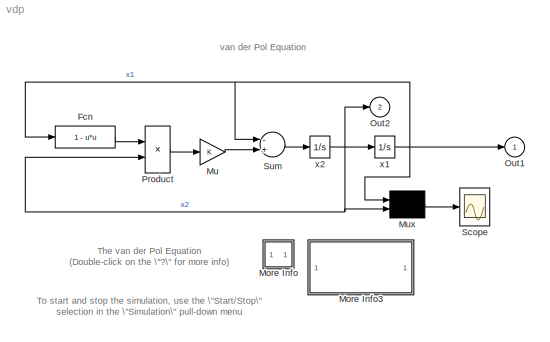
MODEL vdp
KIND model
BLOCK [Fcn] Fcn
  Expr = 1 - u*u
BLOCK [SubSystem] More Info
  MaskDisplay = disp('?')
  MaskIconFrame = on
  MaskIconOpaque = on
  MaskIconRotate = none
  MaskIconUnits = autoscale
  MinAlgLoopOccurrences = off
  Ports = []
  PropExecContextAcrossSSBoundary = on
  RTWSystemCode = Auto
  TreatAsAtomicUnit = off
BLOCK [SubSystem] More Info3
  MaskDisplay = disp('Double-click\\nhere for\\nSimulink Help')
  MaskIconFrame = on
  MaskIconOpaque = on
  MaskIconRotate = none
  MaskIconUnits = autoscale
  MinAlgLoopOccurrences = off
  OpenFcn = simcad(bdroot);
  Ports = []
  PropExecContextAcrossSSBoundary = on
  RTWSystemCode = Auto
  TreatAsAtomicUnit = off
BLOCK [Gain] Mu
BLOCK [Mux] Mux
  Inputs = 2
  Ports = [2, 1]
BLOCK [Outport] Out1
  IconDisplay = Port number
  InitialOutput = 0
BLOCK [Outport] Out2
  IconDisplay = Port number
  InitialOutput = 0
  Port = 2
BLOCK [Product] Product
  Ports = [2, 1]
BLOCK [Scope] Scope
  DataFormat = Array
  NumInputPorts = 1
  Ports = [1]
  TickLabels = on
  TimeRange = 20
  YMax = 3
  YMin = -3
BLOCK [Sum] Sum
  Inputs = -+
  Ports = [2, 1]
BLOCK [Integrator] x1
  InitialCondition = 2
  Ports = [1, 1]
BLOCK [Integrator] x2
  Ports = [1, 1]
ANNOTATION (root): The van der Pol Equation\n(Double-click on the \"?\" for more info)
ANNOTATION (root): To start and stop the simulation, use the \"Start/Stop\"\nselection in the \"Simulation\" pull-down menu
ANNOTATION (root): van der Pol Equation
ANNOTATION More Info: This demonstration models a second order nonlinear\nsystem.
ANNOTATION More Info: To see a demo of this, just type \"vdpdemo\" at the\ncommand line when the \"vdp\" window is open.\n
LINE Fcn:1 -> Product:1
LINE Mu:1 -> Sum:2
LINE Mux:1 -> Scope:1
LINE Product:1 -> Mu:1
LINE Sum:1 -> x2:1
NET x1:1 -> Fcn:1, Mux:1, Out1:1, Sum:1
NET x2:1 -> Mux:2, Out2:1, Product:2, x1:1
note: NET lines group one-source signal fan-out (src -> all destinations, sorted); 1:1 wires keep LINE
